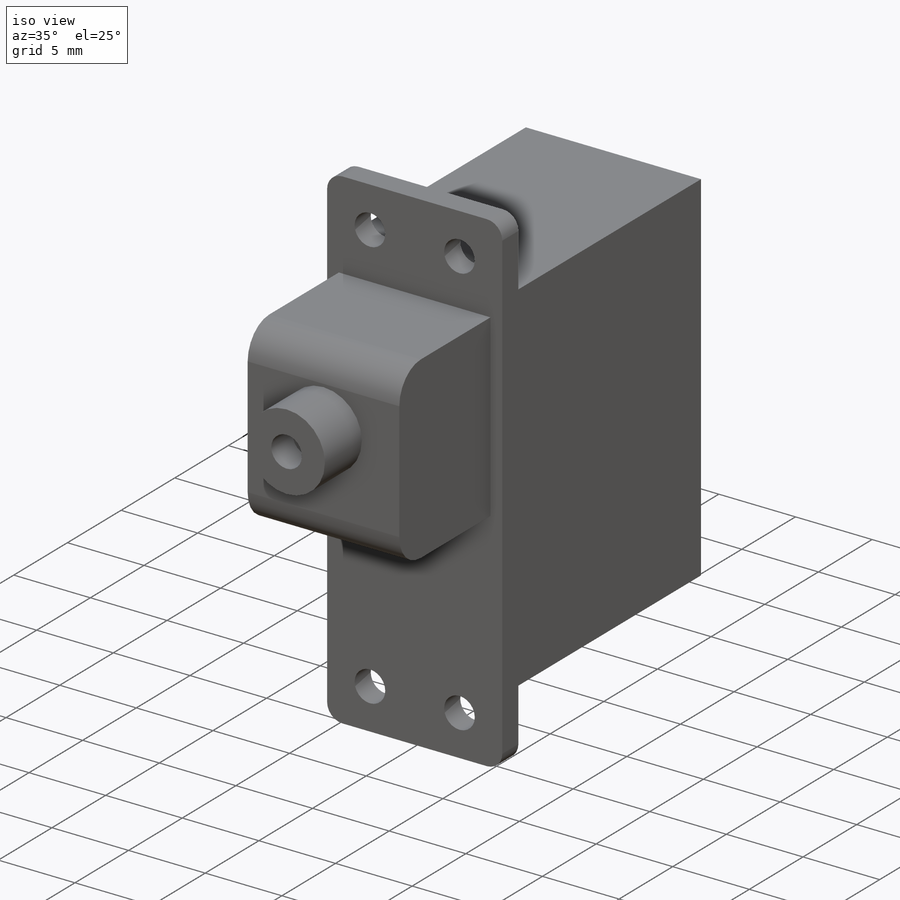
[diagram: iso view]
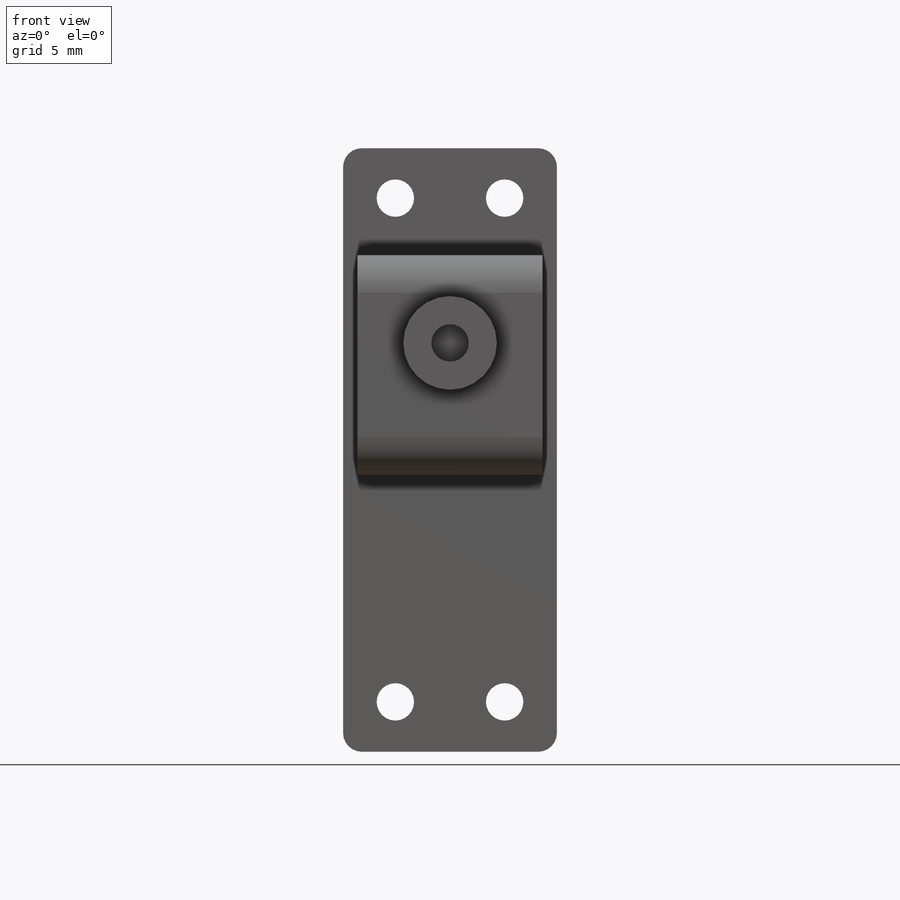
[diagram: front view]
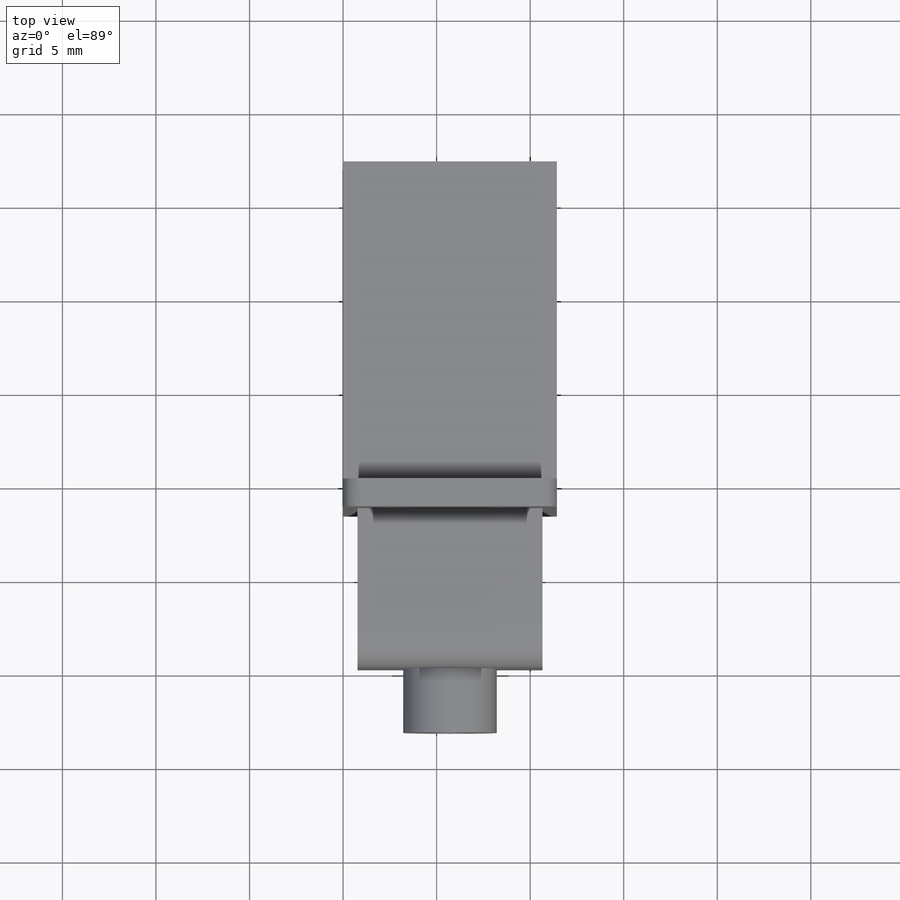
[diagram: top view]
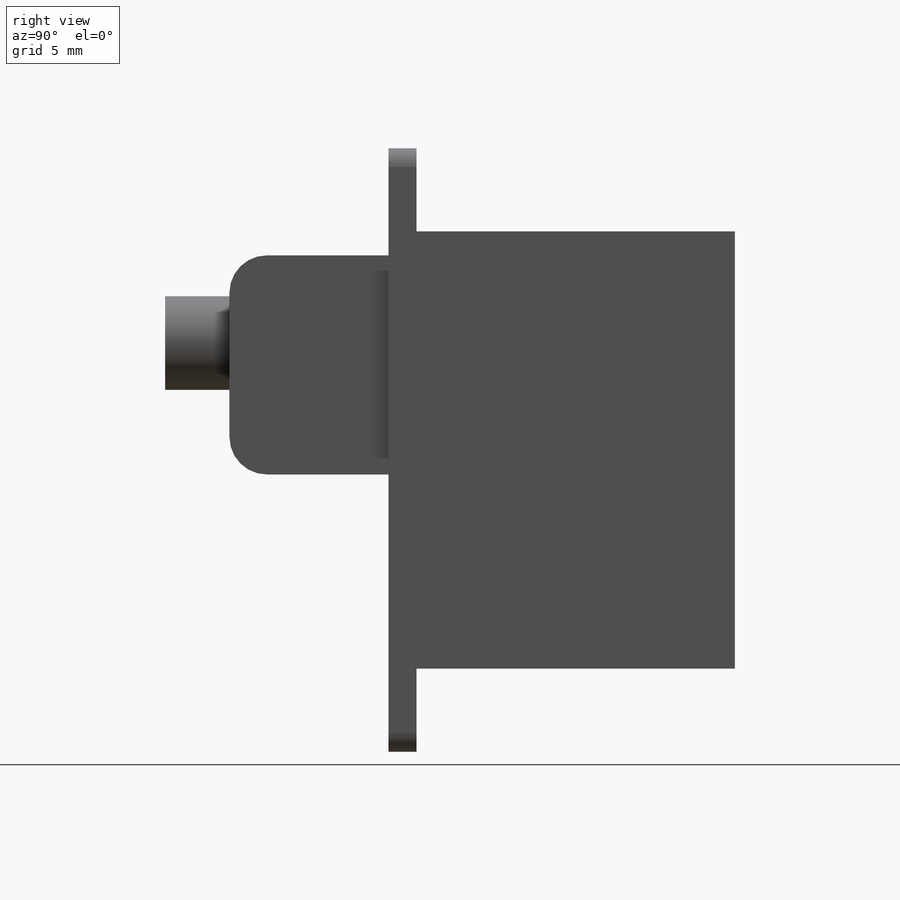
[diagram: right view]
SOLIDWORKS PART (.sldprt)
format: sldprt  version: not decoded by parser v0  size: 241,152 bytes
history: native  units: mm
features: sketch x9, plane x5, extrude x2, cut_extrude x2, hole x2, fillet x2, material x1, revolve x1 (+8 scaffold rows collapsed)
feature tree (32):
  scaffold x8  (default folders/planes/origin — collapsed)
  material  "Cuivre"
  plane  "Plan de face"
  plane  "Plan de dessus"
  plane  "Plan de droite"
  plane  "Plan1"  Offset=11.43mm
  sketch  "Esquisse1"
  extrude  "Boss.-Extru.1"  Depth=11.43mm
  sketch  "Esquisse2"
  cut_extrude  "Enlèv. mat.-Extru.1"  Depth=11.43mm
  sketch  "Esquisse3"
  cut_extrude  "Enlèv. mat.-Extru.2"  Depth=11.43mm
  sketch  "Esquisse4"
  extrude  "Boss.-Extru.2"  Depth=8.5mm
  plane  "Plan2"
  sketch  "Esquisse5"
  revolve  "Révolution1"  Angle=360deg
  hole  "Diamètre du perçage Ø2.0 (2)1"  Diameter=2mm Depth=2mm
  sketch  "Esquisse7"
  sketch  "Esquisse6"  dims[hole-wizard template sketch: 46 standard entries collapsed; hole parameters kept: c15.Diamètre du perçage=2.0mm c15.Profondeur du perçage=2.0mm c15.D3=~14.816244mm c15.Angle de pointe=180.0deg]
  hole  "Diamètre du perçage Ø2.0 (2)2"  Diameter=2mm Depth=13.438mm
  sketch  "Esquisse9"
  sketch  "Esquisse8"  dims[hole-wizard template sketch: 59 standard entries collapsed; hole parameters kept: c18.Diamètre du perçage jusqu'au prochain=2.0mm c18.Profondeur du perçage jusqu'au prochain=13.438mm]
  fillet  "Congé1"  Radius=1mm
  fillet  "Congé2"  Radius=2mm
decode coverage: 11 of 18 modeling features carry decoded parameters
note: ~ marks probable driven/reference dimensions
note: suppression state not decoded; provenance and decode notes live in map.json
